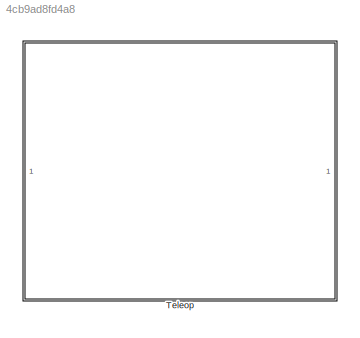
MODEL slx_4cb9ad8fd4a8
KIND library
CONFIG AbsTol = auto
CONFIG EnableMultiTasking = off
CONFIG FixedStep = auto
CONFIG MaxStep = auto
CONFIG MinStep = auto
CONFIG RelTol = 1e-3
CONFIG SampleTimeConstraint = Unconstrained
CONFIG SolverName = VariableStepAuto
CONFIG StartTime = 0.0
CONFIG StopTime = 10.0
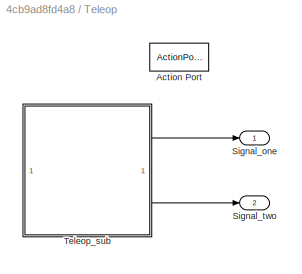
BLOCK [SubSystem] Teleop
  TreatAsAtomicUnit = on
BLOCK [ActionPort] Teleop/Action Port
  InitializeStates = reset
BLOCK [Outport] Teleop/Signal_one
BLOCK [Outport] Teleop/Signal_two
  Port = 2
BLOCK [SubSystem] Teleop/Teleop_sub
  ReferencedSubsystem = Teleop_sub
LINE Teleop/Teleop_sub:1 -> Teleop/Signal_one:1
LINE Teleop/Teleop_sub:2 -> Teleop/Signal_two:1
